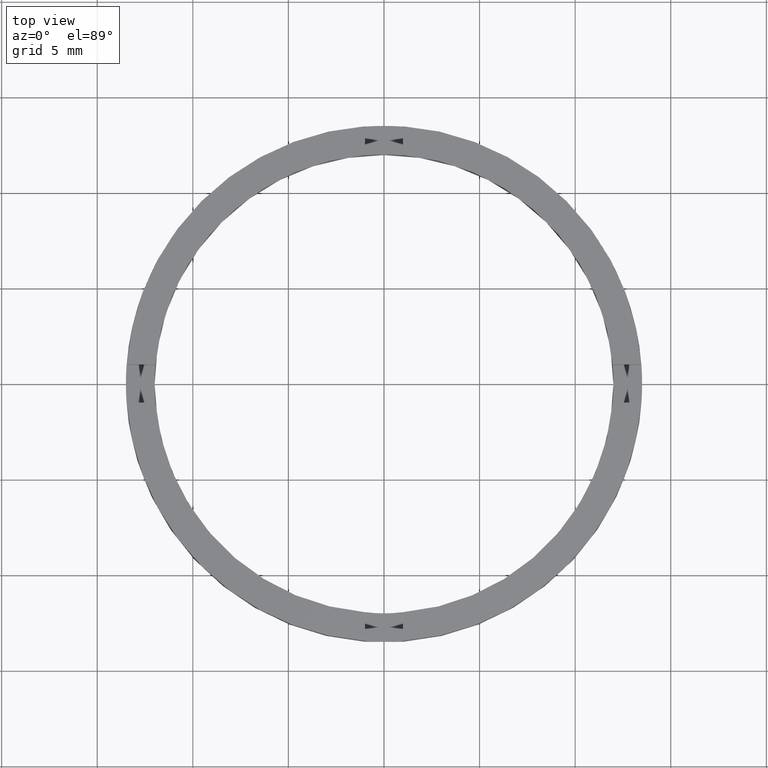
[diagram: clean part render]
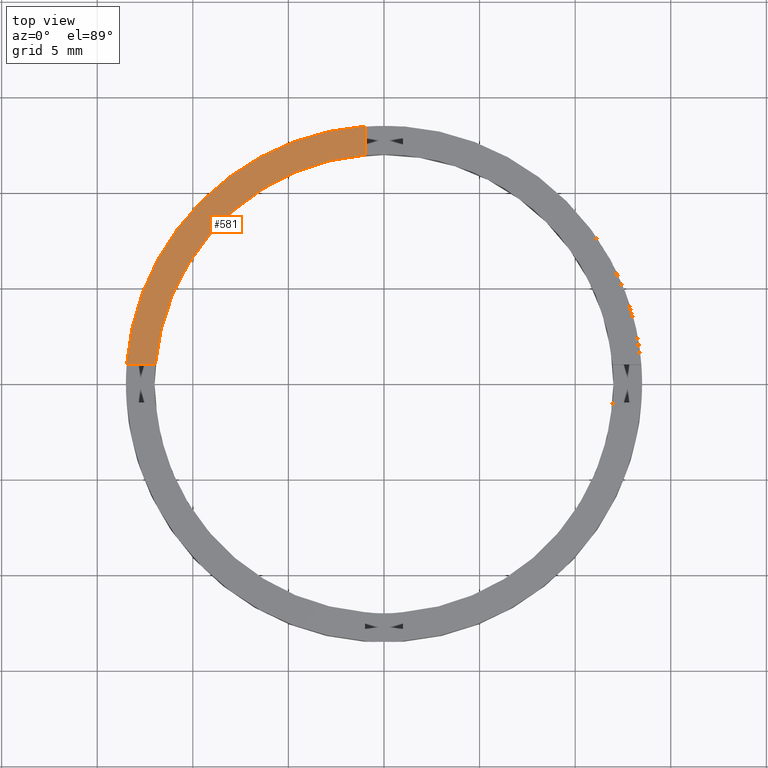
[diagram: same view with one face highlighted and labeled with its STEP entity id]
A machine part, top view. The second image highlights one B-rep face of the part: STEP entity #581.
In plain terms, the highlighted planar face has unit normal (0, 0, 1).
Its self-contained STEP definition (entity closure, byte-faithful):
#39 = FACE_OUTER_BOUND ( 'NONE', #459, .T. ) ;
#51 = AXIS2_PLACEMENT_3D ( 'NONE', #654, #327, #410 ) ;
#62 = EDGE_CURVE ( 'NONE', #431, #375, #417, .T. ) ;
#74 = DIRECTION ( 'NONE',  ( 1.000000000000000000, 0.000000000000000000, 0.000000000000000000 ) ) ;
#95 = CARTESIAN_POINT ( 'NONE',  ( -1.000000000000024647, 11.95826074310139830, 2.500000000000000000 ) ) ;
#122 = DIRECTION ( 'NONE',  ( -1.000000000000000000, -1.734723475976807341E-16, 0.000000000000000000 ) ) ;
#199 = EDGE_CURVE ( 'NONE', #431, #434, #272, .T. ) ;
#213 = PLANE ( 'NONE',  #51 ) ;
#260 = CIRCLE ( 'NONE', #279, 12.00000000000000178 ) ;
#272 = LINE ( 'NONE', #562, #275 ) ;
#274 = CARTESIAN_POINT ( 'NONE',  ( -3.500000000000186962, 0.9999999999999792388, 2.500000000000000000 ) ) ;
#275 = VECTOR ( 'NONE', #597, 1000.000000000000000 ) ;
#279 = AXIS2_PLACEMENT_3D ( 'NONE', #770, #467, #74 ) ;
#280 = LINE ( 'NONE', #274, #541 ) ;
#291 = EDGE_CURVE ( 'NONE', #682, #375, #280, .T. ) ;
#303 = CARTESIAN_POINT ( 'NONE',  ( 0.000000000000000000, 0.000000000000000000, 2.500000000000000000 ) ) ;
#327 = DIRECTION ( 'NONE',  ( 0.000000000000000000, 0.000000000000000000, 1.000000000000000000 ) ) ;
#372 = ORIENTED_EDGE ( 'NONE', *, *, #199, .F. ) ;
#375 = VERTEX_POINT ( 'NONE', #479 ) ;
#410 = DIRECTION ( 'NONE',  ( 1.000000000000000000, 0.000000000000000000, -0.000000000000000000 ) ) ;
#417 = CIRCLE ( 'NONE', #754, 13.50000000000000000 ) ;
#431 = VERTEX_POINT ( 'NONE', #739 ) ;
#434 = VERTEX_POINT ( 'NONE', #95 ) ;
#440 = ORIENTED_EDGE ( 'NONE', *, *, #529, .F. ) ;
#459 = EDGE_LOOP ( 'NONE', ( #372, #684, #687, #440 ) ) ;
#467 = DIRECTION ( 'NONE',  ( 0.000000000000000000, 0.000000000000000000, 1.000000000000000000 ) ) ;
#479 = CARTESIAN_POINT ( 'NONE',  ( -13.46291201783626157, 0.9999999999999774625, 2.500000000000000000 ) ) ;
#529 = EDGE_CURVE ( 'NONE', #434, #682, #260, .T. ) ;
#541 = VECTOR ( 'NONE', #122, 1000.000000000000000 ) ;
#562 = CARTESIAN_POINT ( 'NONE',  ( -1.000000000000024647, 3.500000000000003109, 2.500000000000000000 ) ) ;
#581 = ADVANCED_FACE ( 'NONE', ( #39 ), #213, .T. ) ;
#592 = DIRECTION ( 'NONE',  ( 0.000000000000000000, 0.000000000000000000, 1.000000000000000000 ) ) ;
#597 = DIRECTION ( 'NONE',  ( -0.000000000000000000, -1.000000000000000000, -0.000000000000000000 ) ) ;
#625 = DIRECTION ( 'NONE',  ( 1.000000000000000000, 0.000000000000000000, 0.000000000000000000 ) ) ;
#654 = CARTESIAN_POINT ( 'NONE',  ( 0.000000000000000000, 0.000000000000000000, 2.500000000000000000 ) ) ;
#658 = CARTESIAN_POINT ( 'NONE',  ( -11.95826074310140186, 0.9999999999999776845, 2.500000000000000000 ) ) ;
#682 = VERTEX_POINT ( 'NONE', #658 ) ;
#684 = ORIENTED_EDGE ( 'NONE', *, *, #62, .T. ) ;
#687 = ORIENTED_EDGE ( 'NONE', *, *, #291, .F. ) ;
#739 = CARTESIAN_POINT ( 'NONE',  ( -1.000000000000024647, 13.46291201783625802, 2.500000000000000000 ) ) ;
#754 = AXIS2_PLACEMENT_3D ( 'NONE', #303, #592, #625 ) ;
#770 = CARTESIAN_POINT ( 'NONE',  ( 0.000000000000000000, 0.000000000000000000, 2.500000000000000000 ) ) ;